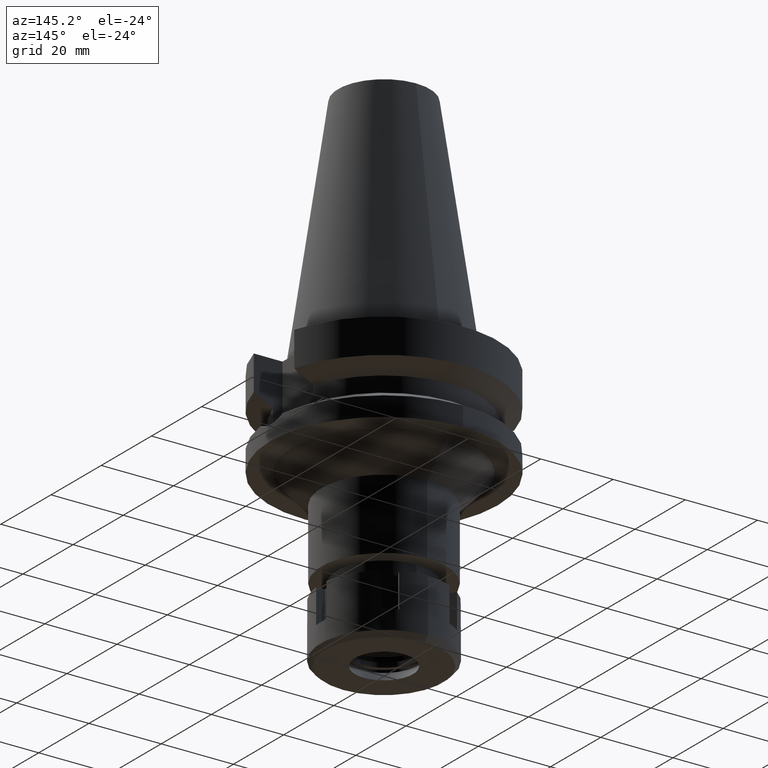
[diagram: clean part render]
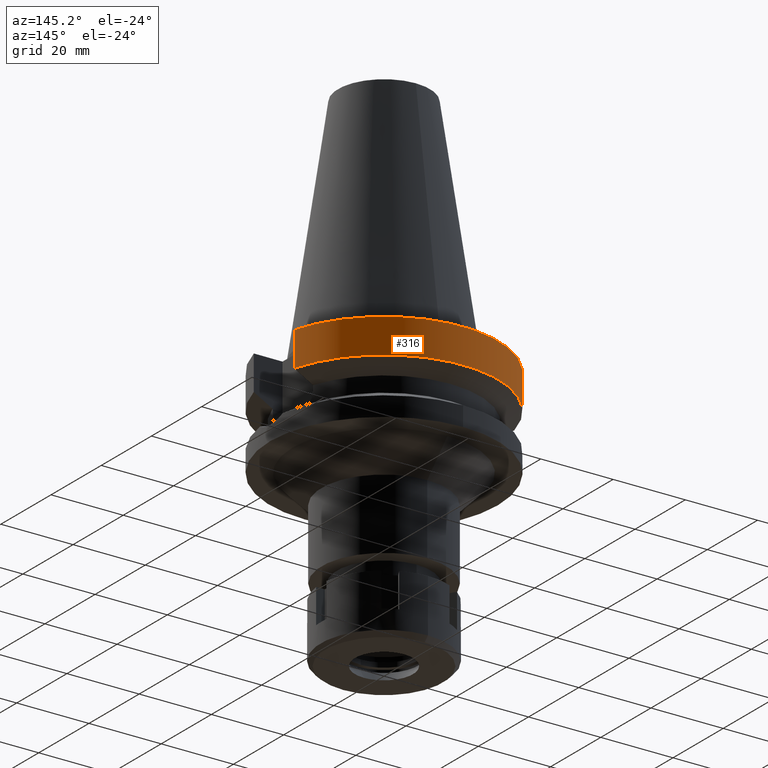
[diagram: same view with one face highlighted and labeled with its STEP entity id]
A machine part, auxiliary view. The second image highlights one B-rep face of the part: STEP entity #316.
In plain terms, the highlighted cylindrical surface (partial cylindrical patch) has radius 31.5 mm, axis along (0, 0, -1).
Its self-contained STEP definition (entity closure, byte-faithful):
#28 = VERTEX_POINT ( 'NONE', #2263 ) ;
#51 = DIRECTION ( 'NONE',  ( 0.0000000000000000000, 0.0000000000000000000, 1.000000000000000000 ) ) ;
#152 = AXIS2_PLACEMENT_3D ( 'NONE', #2414, #251, #3311 ) ;
#225 = CARTESIAN_POINT ( 'NONE',  ( -30.45402272279000044, 8.050000000000000711, -2.000000000000000000 ) ) ;
#251 = DIRECTION ( 'NONE',  ( 0.0000000000000000000, 0.0000000000000000000, -1.000000000000000000 ) ) ;
#309 = VERTEX_POINT ( 'NONE', #225 ) ;
#316 = ADVANCED_FACE ( 'NONE', ( #1666 ), #1916, .T. ) ;
#353 = LINE ( 'NONE', #3354, #942 ) ;
#460 = EDGE_LOOP ( 'NONE', ( #1537, #601, #769, #991 ) ) ;
#601 = ORIENTED_EDGE ( 'NONE', *, *, #2893, .T. ) ;
#769 = ORIENTED_EDGE ( 'NONE', *, *, #1575, .F. ) ;
#785 = CIRCLE ( 'NONE', #3118, 31.50000000000000000 ) ;
#860 = EDGE_CURVE ( 'NONE', #309, #2962, #353, .T. ) ;
#876 = EDGE_CURVE ( 'NONE', #2774, #2962, #3218, .T. ) ;
#942 = VECTOR ( 'NONE', #2762, 1000.000000000000114 ) ;
#991 = ORIENTED_EDGE ( 'NONE', *, *, #876, .T. ) ;
#1127 = CARTESIAN_POINT ( 'NONE',  ( 0.0000000000000000000, 2.106637423893000012E-14, -2.000000000000000000 ) ) ;
#1197 = DIRECTION ( 'NONE',  ( 0.0000000000000000000, 1.000000000000000000, 0.0000000000000000000 ) ) ;
#1373 = LINE ( 'NONE', #3026, #2281 ) ;
#1537 = ORIENTED_EDGE ( 'NONE', *, *, #860, .F. ) ;
#1575 = EDGE_CURVE ( 'NONE', #2774, #28, #1373, .T. ) ;
#1641 = DIRECTION ( 'NONE',  ( 0.0000000000000000000, 0.0000000000000000000, -1.000000000000000000 ) ) ;
#1666 = FACE_OUTER_BOUND ( 'NONE', #460, .T. ) ;
#1916 = CYLINDRICAL_SURFACE ( 'NONE', #152, 31.50000000000000000 ) ;
#2010 = CARTESIAN_POINT ( 'NONE',  ( 0.0000000000000000000, 1.065333950388000029E-14, -11.56550565266999975 ) ) ;
#2122 = AXIS2_PLACEMENT_3D ( 'NONE', #2010, #51, #1197 ) ;
#2124 = DIRECTION ( 'NONE',  ( 0.0000000000000000000, 1.000000000000000000, 0.0000000000000000000 ) ) ;
#2263 = CARTESIAN_POINT ( 'NONE',  ( 30.45402272279000044, 8.050000000000000711, -2.000000000000000000 ) ) ;
#2281 = VECTOR ( 'NONE', #3049, 1000.000000000000000 ) ;
#2414 = CARTESIAN_POINT ( 'NONE',  ( 0.0000000000000000000, 2.106637423893000012E-14, 72.01999999999999602 ) ) ;
#2762 = DIRECTION ( 'NONE',  ( 1.148404203608999894E-07, 4.344531680179994302E-07, -0.9999999999998989697 ) ) ;
#2774 = VERTEX_POINT ( 'NONE', #2929 ) ;
#2893 = EDGE_CURVE ( 'NONE', #309, #28, #785, .T. ) ;
#2929 = CARTESIAN_POINT ( 'NONE',  ( 30.45402291557000041, 8.049999270668999785, -11.56551222159999881 ) ) ;
#2962 = VERTEX_POINT ( 'NONE', #3267 ) ;
#3026 = CARTESIAN_POINT ( 'NONE',  ( 30.45402291557000041, 8.049999270668999785, -11.56551222159999881 ) ) ;
#3049 = DIRECTION ( 'NONE',  ( -2.015422460758988684E-08, 7.624588028091955701E-08, 0.9999999999999968914 ) ) ;
#3118 = AXIS2_PLACEMENT_3D ( 'NONE', #1127, #1641, #2124 ) ;
#3218 = CIRCLE ( 'NONE', #2122, 31.50000000000000000 ) ;
#3267 = CARTESIAN_POINT ( 'NONE',  ( -30.45402162429000015, 8.050004155747998880, -11.56546821947000048 ) ) ;
#3311 = DIRECTION ( 'NONE',  ( 0.0000000000000000000, -1.000000000000000000, 0.0000000000000000000 ) ) ;
#3354 = CARTESIAN_POINT ( 'NONE',  ( -30.45402272279000044, 8.050000000000000711, -2.000000000000000000 ) ) ;